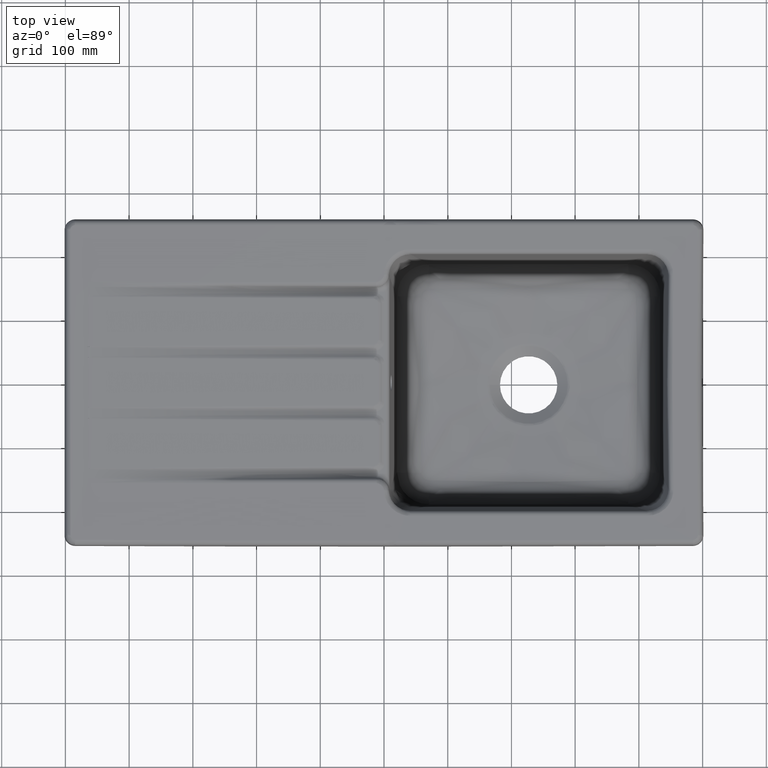
[diagram: clean part render]
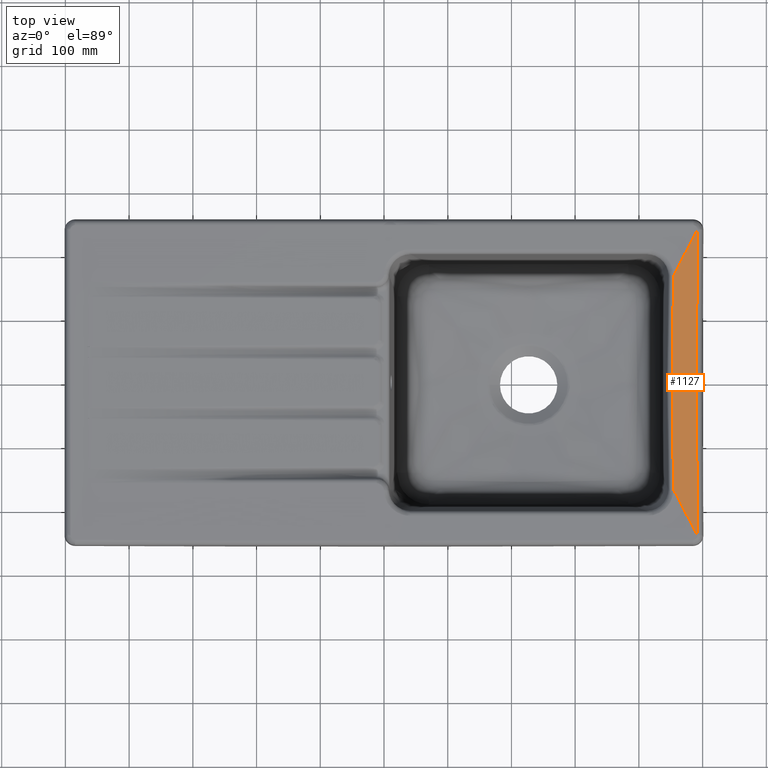
[diagram: same view with one face highlighted and labeled with its STEP entity id]
A machine part, top view. The second image highlights one B-rep face of the part: STEP entity #1127.
In plain terms, the highlighted face is a freeform B-spline surface patch.
Its self-contained STEP definition (entity closure, byte-faithful):
#1127=ADVANCED_FACE('',(#1658),#1577,.T.);
#1577=B_SPLINE_SURFACE_WITH_KNOTS('',1,3,((#9475,#9476,#9477,#9478),(#9479,
#9480,#9481,#9482)),.UNSPECIFIED.,.F.,.F.,.F.,(2,2),(4,4),(0.,1.),(0.,1.),
 .UNSPECIFIED.);
#1658=FACE_OUTER_BOUND('',#2100,.T.);
#2100=EDGE_LOOP('',(#2602,#2603,#2604,#2605));
#2602=ORIENTED_EDGE('',*,*,#5258,.F.);
#2603=ORIENTED_EDGE('',*,*,#5259,.F.);
#2604=ORIENTED_EDGE('',*,*,#5260,.F.);
#2605=ORIENTED_EDGE('',*,*,#5250,.T.);
#4657=VERTEX_POINT('',#9369);
#4659=VERTEX_POINT('',#9378);
#4666=VERTEX_POINT('',#9465);
#4667=VERTEX_POINT('',#9470);
#5250=EDGE_CURVE('',#4657,#4659,#6276,.T.);
#5258=EDGE_CURVE('',#4666,#4659,#6281,.T.);
#5259=EDGE_CURVE('',#4667,#4666,#6282,.T.);
#5260=EDGE_CURVE('',#4657,#4667,#6283,.T.);
#6276=B_SPLINE_CURVE_WITH_KNOTS('',3,(#9379,#9380,#9381,#9382),
 .UNSPECIFIED.,.F.,.F.,(4,4),(0.,1.),.UNSPECIFIED.);
#6281=B_SPLINE_CURVE_WITH_KNOTS('',3,(#9461,#9462,#9463,#9464),
 .UNSPECIFIED.,.F.,.F.,(4,4),(0.,1.),.UNSPECIFIED.);
#6282=B_SPLINE_CURVE_WITH_KNOTS('',3,(#9466,#9467,#9468,#9469),
 .UNSPECIFIED.,.F.,.F.,(4,4),(0.,1.),.UNSPECIFIED.);
#6283=B_SPLINE_CURVE_WITH_KNOTS('',3,(#9471,#9472,#9473,#9474),
 .UNSPECIFIED.,.F.,.F.,(4,4),(0.,1.),.UNSPECIFIED.);
#9369=CARTESIAN_POINT('',(492.000001791833,-239.999999907524,0.499781359378217));
#9378=CARTESIAN_POINT('',(492.00000179292,239.999999909674,0.499781359394891));
#9379=CARTESIAN_POINT('',(492.,-240.,0.5));
#9380=CARTESIAN_POINT('',(489.333395063729,-80.0148146775959,0.5));
#9381=CARTESIAN_POINT('',(489.333395063728,80.0148146775959,0.5));
#9382=CARTESIAN_POINT('',(492.,240.,0.5));
#9461=CARTESIAN_POINT('',(454.330649392139,167.642079819299,0.));
#9462=CARTESIAN_POINT('',(466.887099594759,191.761386546199,0.166666666666666));
#9463=CARTESIAN_POINT('',(479.44354979738,215.8806932731,0.333333333333334));
#9464=CARTESIAN_POINT('',(492.,240.,0.5));
#9465=CARTESIAN_POINT('',(454.33064939132,167.642079785448,9.13310467340397E-34));
#9466=CARTESIAN_POINT('',(454.330649392139,-167.642079819299,0.));
#9467=CARTESIAN_POINT('',(451.664109248686,-55.9019020772358,0.));
#9468=CARTESIAN_POINT('',(451.664109248686,55.9019020772358,0.));
#9469=CARTESIAN_POINT('',(454.330649392139,167.642079819299,0.));
#9470=CARTESIAN_POINT('',(454.330649302844,-167.642076077714,5.10310345119235E-34));
#9471=CARTESIAN_POINT('',(492.,-240.,0.5));
#9472=CARTESIAN_POINT('',(479.44354979738,-215.8806932731,0.333333333333333));
#9473=CARTESIAN_POINT('',(466.887099594759,-191.761386546199,0.166666666666667));
#9474=CARTESIAN_POINT('',(454.330649392139,-167.642079819299,0.));
#9475=CARTESIAN_POINT('',(492.,240.,0.5));
#9476=CARTESIAN_POINT('',(489.333395063728,80.0148146775959,0.5));
#9477=CARTESIAN_POINT('',(489.333395063729,-80.0148146775959,0.5));
#9478=CARTESIAN_POINT('',(492.,-240.,0.5));
#9479=CARTESIAN_POINT('',(454.330649392139,167.642079819299,0.));
#9480=CARTESIAN_POINT('',(451.664109248686,55.9019020772358,0.));
#9481=CARTESIAN_POINT('',(451.664109248686,-55.9019020772358,0.));
#9482=CARTESIAN_POINT('',(454.330649392139,-167.642079819299,0.));